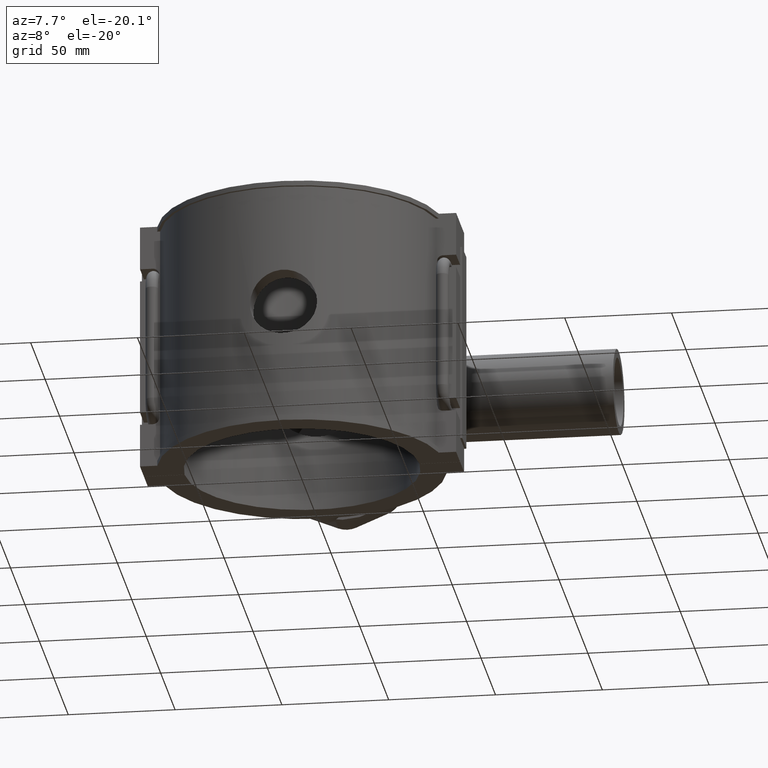
[diagram: clean part render]
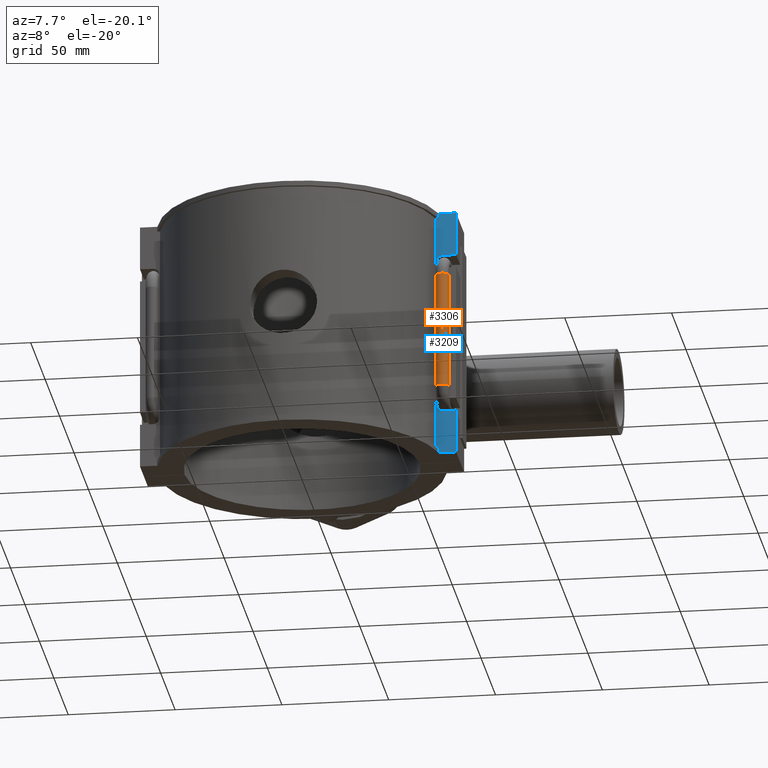
[diagram: same view with the hole feature highlighted: cylindrical wall and planar end face, labeled with their STEP entity ids]
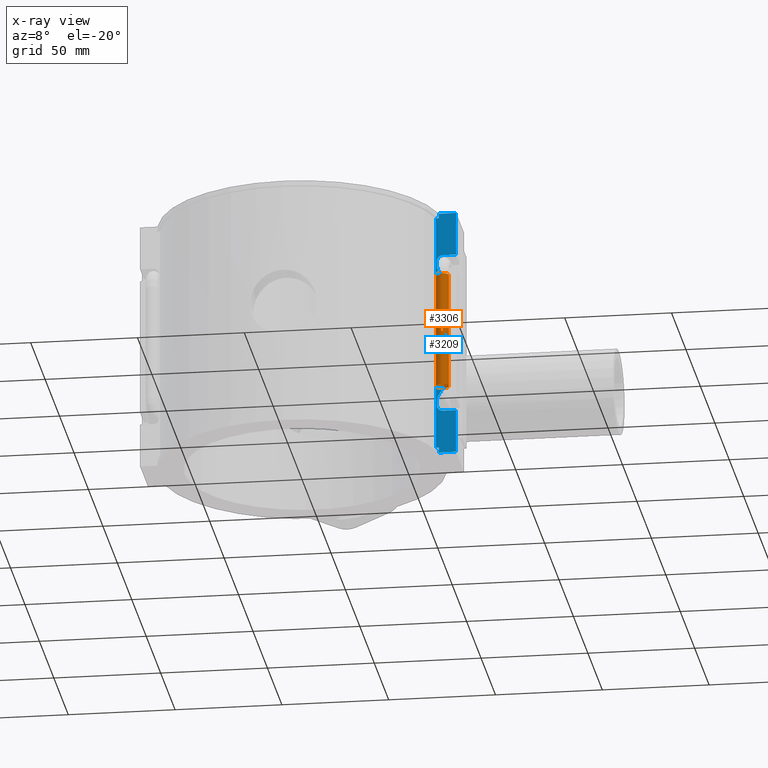
[diagram: x-ray of the same camera — body ghosted, the hole faces saturated]
A machine part, auxiliary view. The highlighted faces form one hole feature of diameter 6 mm: the cylindrical wall (entity #3306, orange) and its adjacent planar end face (entity #3209, blue) — they share a circular edge in the B-rep.
The next image is the same camera in x-ray (body ghosted, the hole faces saturated) — the bore reads through the body.
Wall:
#146=LINE('',#5734,#433);
#433=VECTOR('',#3985,54.8);
#827=CIRCLE('',#3585,3.);
#832=CIRCLE('',#3591,3.);
#1056=FACE_OUTER_BOUND('',#1291,.T.);
#1291=EDGE_LOOP('',(#2937,#2938,#2939,#2940));
#1526=VERTEX_POINT('',#5720);
#1527=VERTEX_POINT('',#5733);
#1891=EDGE_CURVE('',#1527,#1526,#146,.T.);
#2091=EDGE_CURVE('',#1526,#1526,#827,.T.);
#2102=EDGE_CURVE('',#1527,#1527,#832,.T.);
#2937=ORIENTED_EDGE('',*,*,#2102,.T.);
#2938=ORIENTED_EDGE('',*,*,#1891,.T.);
#2939=ORIENTED_EDGE('',*,*,#2091,.F.);
#2940=ORIENTED_EDGE('',*,*,#1891,.F.);
#3137=CYLINDRICAL_SURFACE('',#3596,3.);
#3306=ADVANCED_FACE('',(#1056),#3137,.T.);
#3585=AXIS2_PLACEMENT_3D('',#6558,#4381,#4382);
#3591=AXIS2_PLACEMENT_3D('',#6643,#4393,#4394);
#3596=AXIS2_PLACEMENT_3D('',#6679,#4407,#4408);
#3985=DIRECTION('',(0.,1.62076353959877E-16,-1.));
#4381=DIRECTION('center_axis',(0.,-6.12323399573677E-17,-1.));
#4382=DIRECTION('ref_axis',(-1.,0.,0.));
#4393=DIRECTION('center_axis',(0.,-6.12323399573677E-17,-1.));
#4394=DIRECTION('ref_axis',(-1.,0.,0.));
#4407=DIRECTION('center_axis',(0.,1.62076353959877E-16,-1.));
#4408=DIRECTION('ref_axis',(-1.,0.,0.));
#5720=CARTESIAN_POINT('',(68.,-13.75,-27.4));
#5733=CARTESIAN_POINT('',(68.,-13.75,27.4));
#5734=CARTESIAN_POINT('',(68.,-13.75,27.4));
#6558=CARTESIAN_POINT('Origin',(68.,-16.7499999999993,-27.4));
#6643=CARTESIAN_POINT('Origin',(68.,-16.7499999999993,27.4));
#6679=CARTESIAN_POINT('Origin',(68.,-16.7499999999993,27.4));
End face:
#107=LINE('',#5460,#394);
#110=LINE('',#5468,#397);
#129=LINE('',#5548,#416);
#130=LINE('',#5552,#417);
#143=LINE('',#5713,#430);
#144=LINE('',#5715,#431);
#145=LINE('',#5717,#432);
#146=LINE('',#5734,#433);
#147=LINE('',#5751,#434);
#148=LINE('',#5753,#435);
#149=LINE('',#5754,#436);
#150=LINE('',#5755,#437);
#394=VECTOR('',#3896,2.36);
#397=VECTOR('',#3903,1.34901356519471);
#416=VECTOR('',#3948,2.36);
#417=VECTOR('',#3953,1.34901356519471);
#430=VECTOR('',#3980,8.09916616612502);
#431=VECTOR('',#3981,20.6);
#432=VECTOR('',#3982,6.02433467297777);
#433=VECTOR('',#3985,54.8);
#434=VECTOR('',#3988,6.02433467297777);
#435=VECTOR('',#3989,20.6);
#436=VECTOR('',#3990,8.09916616612502);
#437=VECTOR('',#3991,113.28);
#649=PLANE('',#3455);
#787=CIRCLE('',#3456,3.);
#788=CIRCLE('',#3457,3.);
#959=FACE_OUTER_BOUND('',#1161,.T.);
#1161=EDGE_LOOP('',(#2488,#2489,#2490,#2491,#2492,#2493,#2494,#2495,#2496,
#2497,#2498,#2499,#2500,#2501,#2502,#2503));
#1352=B_SPLINE_CURVE_WITH_KNOTS('',3,(#5721,#5722,#5723,#5724,#5725,#5726,
#5727,#5728,#5729,#5730,#5731,#5732),.UNSPECIFIED.,.F.,.F.,(4,2,2,2,2,4),
(1.5541826746921,1.64143836729109,1.76844964601288,1.89546092473467,2.1009420105833,
2.30642309643193),.UNSPECIFIED.);
#1353=B_SPLINE_CURVE_WITH_KNOTS('',3,(#5736,#5737,#5738,#5739,#5740,#5741,
#5742,#5743,#5744,#5745,#5746,#5747),.UNSPECIFIED.,.F.,.F.,(4,2,2,2,2,4),
(0.,0.205481085848629,0.410962171697258,0.537973450419048,0.664984729140837,
0.752240421739826),.UNSPECIFIED.);
#1473=VERTEX_POINT('',#5457);
#1474=VERTEX_POINT('',#5459);
#1477=VERTEX_POINT('',#5467);
#1500=VERTEX_POINT('',#5544);
#1501=VERTEX_POINT('',#5546);
#1502=VERTEX_POINT('',#5550);
#1522=VERTEX_POINT('',#5712);
#1523=VERTEX_POINT('',#5714);
#1524=VERTEX_POINT('',#5716);
#1525=VERTEX_POINT('',#5718);
#1526=VERTEX_POINT('',#5720);
#1527=VERTEX_POINT('',#5733);
#1528=VERTEX_POINT('',#5735);
#1529=VERTEX_POINT('',#5748);
#1530=VERTEX_POINT('',#5750);
#1531=VERTEX_POINT('',#5752);
#1828=EDGE_CURVE('',#1474,#1473,#107,.T.);
#1832=EDGE_CURVE('',#1477,#1474,#110,.T.);
#1861=EDGE_CURVE('',#1500,#1501,#129,.T.);
#1863=EDGE_CURVE('',#1501,#1502,#130,.T.);
#1886=EDGE_CURVE('',#1522,#1473,#143,.T.);
#1887=EDGE_CURVE('',#1522,#1523,#144,.T.);
#1888=EDGE_CURVE('',#1523,#1524,#145,.T.);
#1889=EDGE_CURVE('',#1524,#1525,#787,.T.);
#1890=EDGE_CURVE('',#1525,#1526,#1352,.T.);
#1891=EDGE_CURVE('',#1527,#1526,#146,.T.);
#1892=EDGE_CURVE('',#1527,#1528,#1353,.T.);
#1893=EDGE_CURVE('',#1528,#1529,#788,.T.);
#1894=EDGE_CURVE('',#1529,#1530,#147,.T.);
#1895=EDGE_CURVE('',#1530,#1531,#148,.T.);
#1896=EDGE_CURVE('',#1500,#1531,#149,.T.);
#1897=EDGE_CURVE('',#1477,#1502,#150,.T.);
#2488=ORIENTED_EDGE('',*,*,#1828,.T.);
#2489=ORIENTED_EDGE('',*,*,#1886,.F.);
#2490=ORIENTED_EDGE('',*,*,#1887,.T.);
#2491=ORIENTED_EDGE('',*,*,#1888,.T.);
#2492=ORIENTED_EDGE('',*,*,#1889,.T.);
#2493=ORIENTED_EDGE('',*,*,#1890,.T.);
#2494=ORIENTED_EDGE('',*,*,#1891,.F.);
#2495=ORIENTED_EDGE('',*,*,#1892,.T.);
#2496=ORIENTED_EDGE('',*,*,#1893,.T.);
#2497=ORIENTED_EDGE('',*,*,#1894,.T.);
#2498=ORIENTED_EDGE('',*,*,#1895,.T.);
#2499=ORIENTED_EDGE('',*,*,#1896,.F.);
#2500=ORIENTED_EDGE('',*,*,#1861,.T.);
#2501=ORIENTED_EDGE('',*,*,#1863,.T.);
#2502=ORIENTED_EDGE('',*,*,#1897,.F.);
#2503=ORIENTED_EDGE('',*,*,#1832,.T.);
#3209=ADVANCED_FACE('',(#959),#649,.T.);
#3455=AXIS2_PLACEMENT_3D('',#5711,#3978,#3979);
#3456=AXIS2_PLACEMENT_3D('',#5719,#3983,#3984);
#3457=AXIS2_PLACEMENT_3D('',#5749,#3986,#3987);
#3896=DIRECTION('',(0.,0.,-1.));
#3903=DIRECTION('',(1.,0.,0.));
#3948=DIRECTION('',(0.,0.,-1.));
#3953=DIRECTION('',(-1.,0.,0.));
#3978=DIRECTION('center_axis',(0.,-1.,0.));
#3979=DIRECTION('ref_axis',(1.,0.,0.));
#3980=DIRECTION('',(-1.,0.,0.));
#3981=DIRECTION('',(0.,0.,1.));
#3982=DIRECTION('',(-1.,0.,0.));
#3983=DIRECTION('center_axis',(0.,1.,0.));
#3984=DIRECTION('ref_axis',(1.,0.,0.));
#3985=DIRECTION('',(0.,1.62076353959877E-16,-1.));
#3986=DIRECTION('center_axis',(0.,1.,0.));
#3987=DIRECTION('ref_axis',(1.,0.,0.));
#3988=DIRECTION('',(1.,0.,7.37158929503087E-16));
#3989=DIRECTION('',(0.,0.,1.));
#3990=DIRECTION('',(1.,0.,0.));
#3991=DIRECTION('',(0.,0.,1.));
#5457=CARTESIAN_POINT('',(65.900833833875,-13.75,-59.));
#5459=CARTESIAN_POINT('',(65.900833833875,-13.75,-56.64));
#5460=CARTESIAN_POINT('',(65.900833833875,-13.75,-59.));
#5467=CARTESIAN_POINT('',(64.5518202686803,-13.75,-56.64));
#5468=CARTESIAN_POINT('',(32.2759101343401,-13.75,-56.64));
#5544=CARTESIAN_POINT('',(65.900833833875,-13.75,59.));
#5546=CARTESIAN_POINT('',(65.900833833875,-13.75,56.64));
#5548=CARTESIAN_POINT('',(65.900833833875,-13.75,59.));
#5550=CARTESIAN_POINT('',(64.5518202686803,-13.75,56.64));
#5552=CARTESIAN_POINT('',(32.2759101343401,-13.75,56.64));
#5711=CARTESIAN_POINT('Origin',(64.5518202686803,-13.75,0.));
#5712=CARTESIAN_POINT('',(74.,-13.75,-59.));
#5713=CARTESIAN_POINT('',(64.5518202686803,-13.75,-59.));
#5714=CARTESIAN_POINT('',(74.,-13.75,-38.4));
#5715=CARTESIAN_POINT('',(74.,-13.75,0.));
#5716=CARTESIAN_POINT('',(67.9756653270222,-13.75,-38.4));
#5717=CARTESIAN_POINT('',(69.2759101343401,-13.75,-38.4));
#5718=CARTESIAN_POINT('',(65.092907556629,-13.75,-34.5695136140564));
#5719=CARTESIAN_POINT('Origin',(67.9756653270222,-13.75,-35.4));
#5720=CARTESIAN_POINT('',(68.,-13.75,-27.4));
#5721=CARTESIAN_POINT('Ctrl Pts',(65.092907556629,-13.75,-34.5695136140564));
#5722=CARTESIAN_POINT('Ctrl Pts',(65.0281744318221,-13.75,-34.259817704623));
#5723=CARTESIAN_POINT('Ctrl Pts',(65.,-13.75,-33.9358503070612));
#5724=CARTESIAN_POINT('Ctrl Pts',(65.,-13.75,-33.2216270693252));
#5725=CARTESIAN_POINT('Ctrl Pts',(65.0580680938667,-13.75,-32.7627013613539));
#5726=CARTESIAN_POINT('Ctrl Pts',(65.2771836493012,-13.75,-31.867336720585));
#5727=CARTESIAN_POINT('Ctrl Pts',(65.4370980571853,-13.75,-31.4306208843288));
#5728=CARTESIAN_POINT('Ctrl Pts',(65.8891687969839,-13.75,-30.41870270221));
#5729=CARTESIAN_POINT('Ctrl Pts',(66.270333637417,-13.75,-29.7738388291261));
#5730=CARTESIAN_POINT('Ctrl Pts',(67.1179526808833,-13.75,-28.5365468681762));
#5731=CARTESIAN_POINT('Ctrl Pts',(67.5805634898982,-13.75,-27.9414902061386));
#5732=CARTESIAN_POINT('Ctrl Pts',(68.,-13.75,-27.4));
#5733=CARTESIAN_POINT('',(68.,-13.75,27.4));
#5734=CARTESIAN_POINT('',(68.,-13.75,27.4));
#5735=CARTESIAN_POINT('',(65.092907556629,-13.75,34.5695136140564));
#5736=CARTESIAN_POINT('Ctrl Pts',(68.,-13.75,27.4));
#5737=CARTESIAN_POINT('Ctrl Pts',(67.5805634898982,-13.75,27.9414902061386));
#5738=CARTESIAN_POINT('Ctrl Pts',(67.1179526808833,-13.75,28.5365468681762));
#5739=CARTESIAN_POINT('Ctrl Pts',(66.270333637417,-13.75,29.7738388291261));
#5740=CARTESIAN_POINT('Ctrl Pts',(65.8891687969839,-13.75,30.41870270221));
#5741=CARTESIAN_POINT('Ctrl Pts',(65.4370980571853,-13.75,31.4306208843288));
#5742=CARTESIAN_POINT('Ctrl Pts',(65.2771836493012,-13.75,31.867336720585));
#5743=CARTESIAN_POINT('Ctrl Pts',(65.0580680938667,-13.75,32.7627013613539));
#5744=CARTESIAN_POINT('Ctrl Pts',(65.,-13.75,33.2216270693252));
#5745=CARTESIAN_POINT('Ctrl Pts',(65.,-13.75,33.9358503070612));
#5746=CARTESIAN_POINT('Ctrl Pts',(65.0281744318221,-13.75,34.259817704623));
#5747=CARTESIAN_POINT('Ctrl Pts',(65.092907556629,-13.75,34.5695136140564));
#5748=CARTESIAN_POINT('',(67.9756653270222,-13.75,38.4));
#5749=CARTESIAN_POINT('Origin',(67.9756653270222,-13.75,35.4));
#5750=CARTESIAN_POINT('',(74.,-13.75,38.4));
#5751=CARTESIAN_POINT('',(66.2637427978512,-13.75,38.4));
#5752=CARTESIAN_POINT('',(74.,-13.75,59.));
#5753=CARTESIAN_POINT('',(74.,-13.75,0.));
#5754=CARTESIAN_POINT('',(64.5518202686803,-13.75,59.));
#5755=CARTESIAN_POINT('',(64.5518202686803,-13.75,0.));